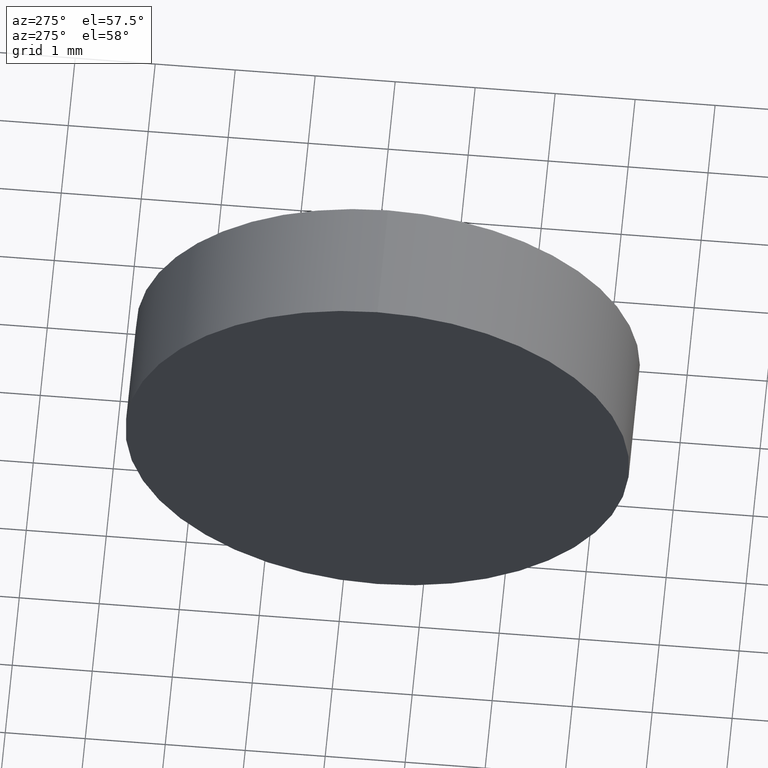
[diagram: clean part render]
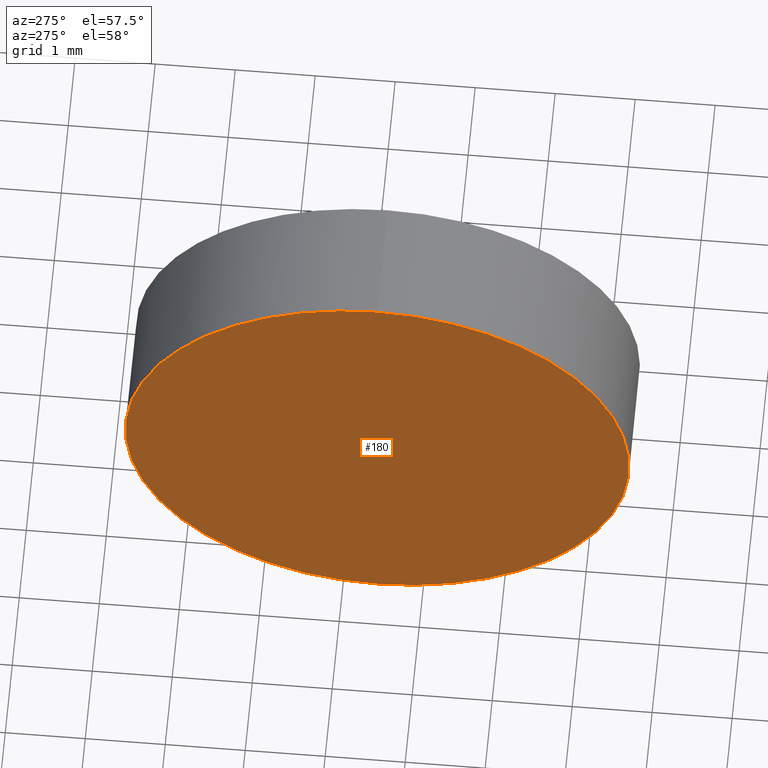
[diagram: same view with one face highlighted and labeled with its STEP entity id]
A machine part, auxiliary view. The second image highlights one B-rep face of the part: STEP entity #180.
In plain terms, the highlighted planar face has unit normal (1, 0, 0).
Its self-contained STEP definition (entity closure, byte-faithful):
#2 = FACE_OUTER_BOUND ( 'NONE', #88, .T. ) ;
#11 = PLANE ( 'NONE',  #70 ) ;
#17 = ORIENTED_EDGE ( 'NONE', *, *, #153, .T. ) ;
#21 = DIRECTION ( 'NONE',  ( -1.000000000000000000, -0.0000000000000000000, -0.0000000000000000000 ) ) ;
#22 = CARTESIAN_POINT ( 'NONE',  ( 617.5050449967925500, 86.56717814228176200, 0.0000000000000000000 ) ) ;
#47 = EDGE_CURVE ( 'NONE', #61, #128, #159, .T. ) ;
#58 = ORIENTED_EDGE ( 'NONE', *, *, #47, .T. ) ;
#61 = VERTEX_POINT ( 'NONE', #114 ) ;
#62 = CARTESIAN_POINT ( 'NONE',  ( 617.5050449967925500, 86.56717814228176200, 0.0000000000000000000 ) ) ;
#70 = AXIS2_PLACEMENT_3D ( 'NONE', #62, #102, #83 ) ;
#79 = DIRECTION ( 'NONE',  ( -1.000000000000000000, -0.0000000000000000000, -0.0000000000000000000 ) ) ;
#83 = DIRECTION ( 'NONE',  ( 0.0000000000000000000, 0.0000000000000000000, -1.000000000000000000 ) ) ;
#88 = EDGE_LOOP ( 'NONE', ( #58, #17 ) ) ;
#96 = CIRCLE ( 'NONE', #186, 3.149999999999999900 ) ;
#101 = AXIS2_PLACEMENT_3D ( 'NONE', #22, #21, #130 ) ;
#102 = DIRECTION ( 'NONE',  ( 1.000000000000000000, 0.0000000000000000000, 0.0000000000000000000 ) ) ;
#114 = CARTESIAN_POINT ( 'NONE',  ( 617.5050449967925500, 86.56717814228176200, 3.149999999999999900 ) ) ;
#128 = VERTEX_POINT ( 'NONE', #134 ) ;
#130 = DIRECTION ( 'NONE',  ( 0.0000000000000000000, 0.0000000000000000000, 1.000000000000000000 ) ) ;
#134 = CARTESIAN_POINT ( 'NONE',  ( 617.5050449967925500, 86.56717814228176200, -3.149999999999999900 ) ) ;
#148 = DIRECTION ( 'NONE',  ( 0.0000000000000000000, 0.0000000000000000000, 1.000000000000000000 ) ) ;
#153 = EDGE_CURVE ( 'NONE', #128, #61, #96, .T. ) ;
#159 = CIRCLE ( 'NONE', #101, 3.149999999999999900 ) ;
#180 = ADVANCED_FACE ( 'NONE', ( #2 ), #11, .F. ) ;
#181 = CARTESIAN_POINT ( 'NONE',  ( 617.5050449967925500, 86.56717814228176200, 0.0000000000000000000 ) ) ;
#186 = AXIS2_PLACEMENT_3D ( 'NONE', #181, #79, #148 ) ;